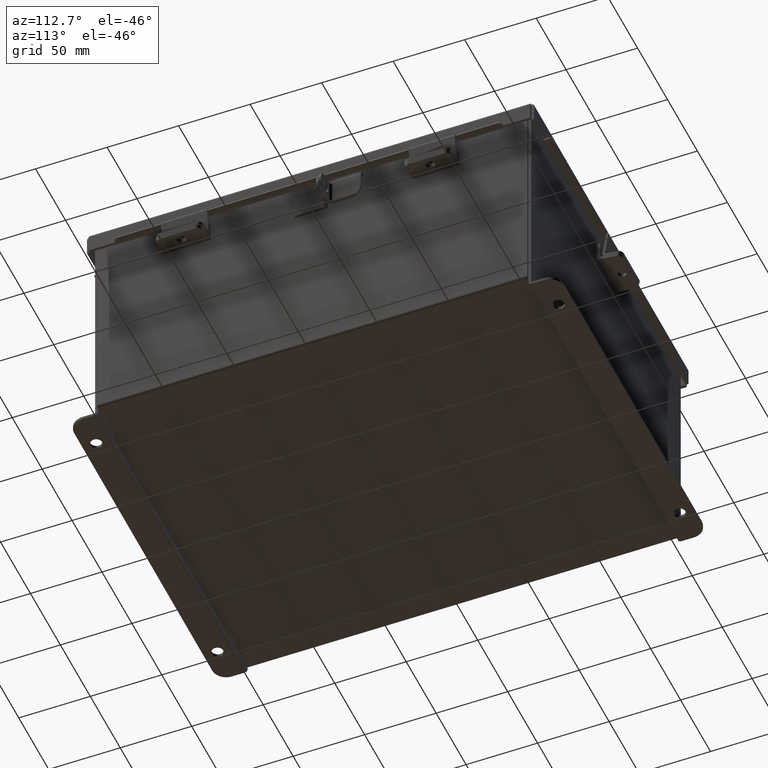
[diagram: clean part render]
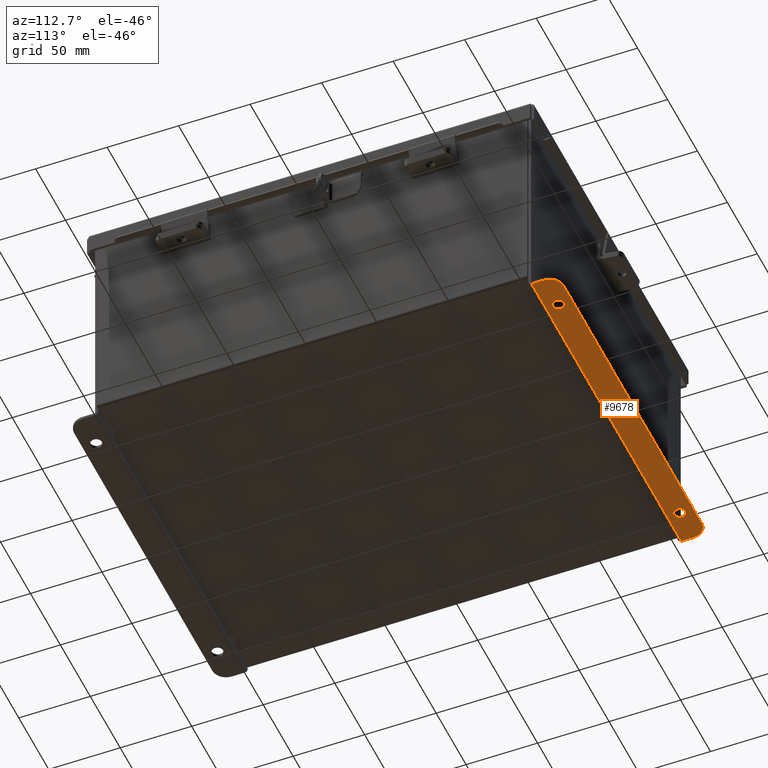
[diagram: same view with one face highlighted and labeled with its STEP entity id]
A machine part, auxiliary view. The second image highlights one B-rep face of the part: STEP entity #9678.
In plain terms, the highlighted planar face has unit normal (0, 0, 1).
Its self-contained STEP definition (entity closure, byte-faithful):
#25 = EDGE_CURVE ( 'NONE', #15303, #2818, #4478, .T. ) ;
#246 = CARTESIAN_POINT ( 'NONE',  ( -4.925300000000000000, 0.3627999999999997300, -3.187000000000001200 ) ) ;
#412 = CARTESIAN_POINT ( 'NONE',  ( -4.925300000000000000, -1.092739197465705300E-014, -3.187000000000000300 ) ) ;
#482 = ORIENTED_EDGE ( 'NONE', *, *, #6593, .F. ) ;
#506 = AXIS2_PLACEMENT_3D ( 'NONE', #5696, #4025, #16733 ) ;
#940 = ORIENTED_EDGE ( 'NONE', *, *, #2178, .T. ) ;
#1138 = EDGE_LOOP ( 'NONE', ( #11251, #14390, #3476, #482, #940, #14783 ) ) ;
#1214 = CARTESIAN_POINT ( 'NONE',  ( -4.550300000000000000, 0.7378000000000000100, -3.187000000000002900 ) ) ;
#1990 = ORIENTED_EDGE ( 'NONE', *, *, #3627, .F. ) ;
#2075 = LINE ( 'NONE', #7178, #8465 ) ;
#2128 = EDGE_CURVE ( 'NONE', #2818, #9457, #2075, .T. ) ;
#2135 = VECTOR ( 'NONE', #16507, 39.37007874015748100 ) ;
#2178 = EDGE_CURVE ( 'NONE', #14872, #15303, #11273, .T. ) ;
#2695 = DIRECTION ( 'NONE',  ( 0.0000000000000000000, -3.702694488566362300E-015, -1.000000000000000000 ) ) ;
#2818 = VERTEX_POINT ( 'NONE', #1214 ) ;
#2820 = CIRCLE ( 'NONE', #2946, 0.1560000000000001900 ) ;
#2946 = AXIS2_PLACEMENT_3D ( 'NONE', #10169, #4384, #17148 ) ;
#2981 = DIRECTION ( 'NONE',  ( -0.0000000000000000000, -3.702694488566362300E-015, -1.000000000000000000 ) ) ;
#3160 = CARTESIAN_POINT ( 'NONE',  ( 4.550300000000000000, 0.7378000000000000100, -3.187000000000002900 ) ) ;
#3448 = CARTESIAN_POINT ( 'NONE',  ( 3.987800000000000000, 0.5187999999999988200, -3.187000000000001600 ) ) ;
#3476 = ORIENTED_EDGE ( 'NONE', *, *, #15169, .T. ) ;
#3627 = EDGE_CURVE ( 'NONE', #8244, #8417, #5412, .T. ) ;
#3634 = DIRECTION ( 'NONE',  ( 0.0000000000000000000, 3.702694488566362300E-015, 1.000000000000000000 ) ) ;
#4025 = DIRECTION ( 'NONE',  ( 0.0000000000000000000, -3.702694488566362300E-015, -1.000000000000000000 ) ) ;
#4041 = DIRECTION ( 'NONE',  ( 0.0000000000000000000, -1.000000000000000000, 3.702694488566362300E-015 ) ) ;
#4112 = ORIENTED_EDGE ( 'NONE', *, *, #4176, .F. ) ;
#4176 = EDGE_CURVE ( 'NONE', #4713, #16580, #17187, .T. ) ;
#4375 = VERTEX_POINT ( 'NONE', #7200 ) ;
#4384 = DIRECTION ( 'NONE',  ( 0.0000000000000000000, -3.702694488566362300E-015, -1.000000000000000000 ) ) ;
#4411 = VECTOR ( 'NONE', #11050, 39.37007874015748100 ) ;
#4424 = DIRECTION ( 'NONE',  ( 1.000000000000000000, 0.0000000000000000000, -0.0000000000000000000 ) ) ;
#4439 = EDGE_CURVE ( 'NONE', #8417, #8244, #2820, .T. ) ;
#4478 = CIRCLE ( 'NONE', #8348, 0.3750000000000000600 ) ;
#4504 = DIRECTION ( 'NONE',  ( 0.0000000000000000000, -3.702694488566362300E-015, -1.000000000000000000 ) ) ;
#4713 = VERTEX_POINT ( 'NONE', #3448 ) ;
#5042 = FACE_OUTER_BOUND ( 'NONE', #1138, .T. ) ;
#5412 = CIRCLE ( 'NONE', #6701, 0.1560000000000001900 ) ;
#5443 = CARTESIAN_POINT ( 'NONE',  ( -3.987800000000000900, 0.2067999999999984900, -3.187000000000000700 ) ) ;
#5522 = CARTESIAN_POINT ( 'NONE',  ( 4.925300000000000000, 0.01300000000000010700, -3.187000000000000300 ) ) ;
#5696 = CARTESIAN_POINT ( 'NONE',  ( 3.987800000000000000, 0.3627999999999986800, -3.187000000000001200 ) ) ;
#6432 = CARTESIAN_POINT ( 'NONE',  ( 3.987800000000000000, 0.2067999999999984900, -3.187000000000000700 ) ) ;
#6593 = EDGE_CURVE ( 'NONE', #14872, #4375, #16710, .T. ) ;
#6701 = AXIS2_PLACEMENT_3D ( 'NONE', #14765, #2695, #10754 ) ;
#6796 = CARTESIAN_POINT ( 'NONE',  ( 4.925300000000000000, -1.092739197465705300E-014, -3.187000000000000300 ) ) ;
#7178 = CARTESIAN_POINT ( 'NONE',  ( 0.0000000000000000000, 0.7378000000000000100, -3.187000000000002900 ) ) ;
#7200 = CARTESIAN_POINT ( 'NONE',  ( 4.925300000000000000, 0.01300000000000010700, -3.187000000000000300 ) ) ;
#7353 = EDGE_LOOP ( 'NONE', ( #1990, #10135 ) ) ;
#7684 = PLANE ( 'NONE',  #15450 ) ;
#7776 = ORIENTED_EDGE ( 'NONE', *, *, #14214, .F. ) ;
#7972 = AXIS2_PLACEMENT_3D ( 'NONE', #8129, #17711, #9495 ) ;
#8129 = CARTESIAN_POINT ( 'NONE',  ( 4.550300000000000000, 0.3627999999999997300, -3.187000000000001200 ) ) ;
#8244 = VERTEX_POINT ( 'NONE', #10572 ) ;
#8348 = AXIS2_PLACEMENT_3D ( 'NONE', #15978, #2981, #10232 ) ;
#8417 = VERTEX_POINT ( 'NONE', #5443 ) ;
#8465 = VECTOR ( 'NONE', #4424, 39.37007874015748100 ) ;
#8669 = FACE_BOUND ( 'NONE', #7353, .T. ) ;
#9337 = LINE ( 'NONE', #6796, #13040 ) ;
#9457 = VERTEX_POINT ( 'NONE', #3160 ) ;
#9495 = DIRECTION ( 'NONE',  ( 0.0000000000000000000, -1.000000000000000000, 4.370956789862820400E-015 ) ) ;
#9678 = ADVANCED_FACE ( 'NONE', ( #8669, #13216, #5042 ), #7684, .F. ) ;
#10135 = ORIENTED_EDGE ( 'NONE', *, *, #4439, .F. ) ;
#10169 = CARTESIAN_POINT ( 'NONE',  ( -3.987800000000000900, 0.3627999999999986800, -3.187000000000001200 ) ) ;
#10232 = DIRECTION ( 'NONE',  ( 0.0000000000000000000, -1.000000000000000000, 4.370956789862820400E-015 ) ) ;
#10507 = EDGE_CURVE ( 'NONE', #9457, #11746, #14018, .T. ) ;
#10572 = CARTESIAN_POINT ( 'NONE',  ( -3.987800000000000900, 0.5187999999999988200, -3.187000000000001600 ) ) ;
#10616 = CARTESIAN_POINT ( 'NONE',  ( 4.925300000000000000, 0.3627999999999997300, -3.187000000000001200 ) ) ;
#10754 = DIRECTION ( 'NONE',  ( 0.0000000000000000000, 1.000000000000000000, -3.502369222646487000E-015 ) ) ;
#11050 = DIRECTION ( 'NONE',  ( 0.0000000000000000000, 1.000000000000000000, -3.702694488566362300E-015 ) ) ;
#11251 = ORIENTED_EDGE ( 'NONE', *, *, #2128, .T. ) ;
#11273 = LINE ( 'NONE', #412, #4411 ) ;
#11617 = EDGE_LOOP ( 'NONE', ( #4112, #7776 ) ) ;
#11650 = CARTESIAN_POINT ( 'NONE',  ( -4.925299999999999100, 0.01300000000000010700, -3.187000000000000300 ) ) ;
#11746 = VERTEX_POINT ( 'NONE', #10616 ) ;
#11819 = CARTESIAN_POINT ( 'NONE',  ( 0.0000000000000000000, -1.092739197465705300E-014, -3.187000000000000300 ) ) ;
#12730 = CARTESIAN_POINT ( 'NONE',  ( 3.987800000000000000, 0.3627999999999986800, -3.187000000000001200 ) ) ;
#13040 = VECTOR ( 'NONE', #4041, 39.37007874015748100 ) ;
#13216 = FACE_BOUND ( 'NONE', #11617, .T. ) ;
#13224 = DIRECTION ( 'NONE',  ( 0.0000000000000000000, -1.000000000000000000, 3.702694488566362300E-015 ) ) ;
#14018 = CIRCLE ( 'NONE', #7972, 0.3750000000000000600 ) ;
#14074 = DIRECTION ( 'NONE',  ( 0.0000000000000000000, 1.000000000000000000, -3.502369222646487000E-015 ) ) ;
#14214 = EDGE_CURVE ( 'NONE', #16580, #4713, #15419, .T. ) ;
#14390 = ORIENTED_EDGE ( 'NONE', *, *, #10507, .T. ) ;
#14765 = CARTESIAN_POINT ( 'NONE',  ( -3.987800000000000900, 0.3627999999999986800, -3.187000000000001200 ) ) ;
#14783 = ORIENTED_EDGE ( 'NONE', *, *, #25, .T. ) ;
#14872 = VERTEX_POINT ( 'NONE', #11650 ) ;
#15169 = EDGE_CURVE ( 'NONE', #11746, #4375, #9337, .T. ) ;
#15303 = VERTEX_POINT ( 'NONE', #246 ) ;
#15419 = CIRCLE ( 'NONE', #16343, 0.1560000000000001900 ) ;
#15450 = AXIS2_PLACEMENT_3D ( 'NONE', #11819, #3634, #13224 ) ;
#15978 = CARTESIAN_POINT ( 'NONE',  ( -4.550300000000000000, 0.3627999999999997300, -3.187000000000001200 ) ) ;
#16343 = AXIS2_PLACEMENT_3D ( 'NONE', #12730, #4504, #14074 ) ;
#16507 = DIRECTION ( 'NONE',  ( 1.000000000000000000, -0.0000000000000000000, -0.0000000000000000000 ) ) ;
#16580 = VERTEX_POINT ( 'NONE', #6432 ) ;
#16710 = LINE ( 'NONE', #5522, #2135 ) ;
#16733 = DIRECTION ( 'NONE',  ( 0.0000000000000000000, 1.000000000000000000, -3.502369222646487000E-015 ) ) ;
#17148 = DIRECTION ( 'NONE',  ( 0.0000000000000000000, 1.000000000000000000, -3.502369222646487000E-015 ) ) ;
#17187 = CIRCLE ( 'NONE', #506, 0.1560000000000001900 ) ;
#17711 = DIRECTION ( 'NONE',  ( -0.0000000000000000000, -3.702694488566362300E-015, -1.000000000000000000 ) ) ;